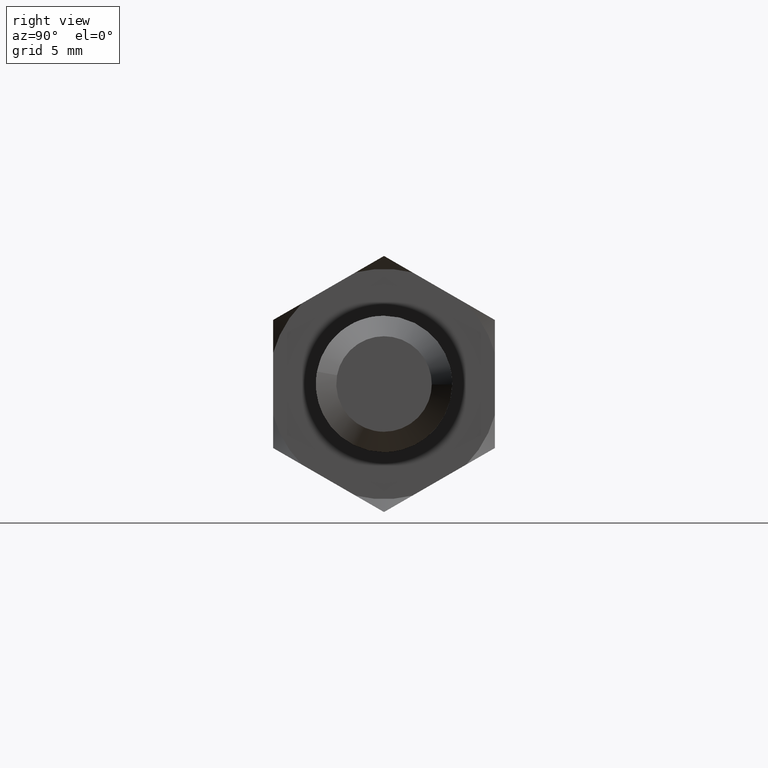
[diagram: clean part render]
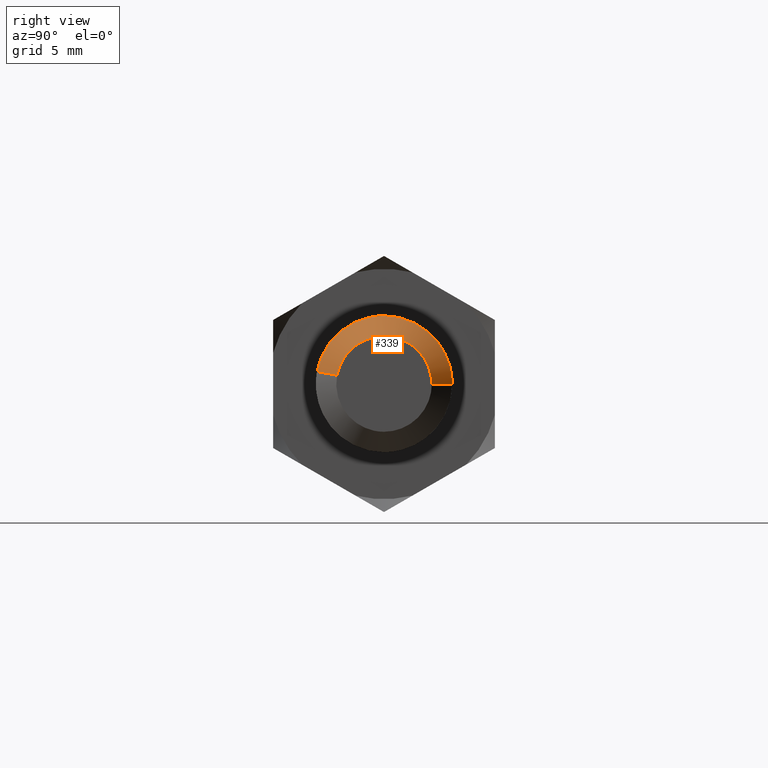
[diagram: same view with one face highlighted and labeled with its STEP entity id]
A machine part, right view. The second image highlights one B-rep face of the part: STEP entity #339.
In plain terms, the highlighted face is a freeform B-spline surface patch.
Its self-contained STEP definition (entity closure, byte-faithful):
#226=CARTESIAN_POINT('',(38.030000000000015,-2.723159001914594,0.507252452228140));
#227=CARTESIAN_POINT('',(38.030000000000001,-2.297913917699555,2.790159068082791));
#228=CARTESIAN_POINT('',(38.030000000000008,0.024172503330496,2.769894526887745));
#229=CARTESIAN_POINT('',(38.030000000000008,2.794067030218240,2.745722023557250));
#230=CARTESIAN_POINT('',(38.030000000000008,2.769894526887745,-0.024172503330496));
#231=CARTESIAN_POINT('',(36.769250000000000,-3.962589583742731,0.738125567443537));
#232=CARTESIAN_POINT('',(36.769249999999985,-3.343796578977463,4.060084355117265));
#233=CARTESIAN_POINT('',(36.769249999999992,0.035174482960071,4.030596521390938));
#234=CARTESIAN_POINT('',(36.769249999999992,4.065771004351008,3.995422038430867));
#235=CARTESIAN_POINT('',(36.769249999999992,4.030596521390938,-0.035174482960071));
#243=(BOUNDED_SURFACE()B_SPLINE_SURFACE(2,1,((#226,#231),(#227,#232),(#228,#233),(#229,#234),(#230,#235)),.UNSPECIFIED.,.F.,.F.,.U.)B_SPLINE_SURFACE_WITH_KNOTS((3,2,3),(2,2),(0.0,5.876961434204485,12.555326700345949),(0.0,1.0),.UNSPECIFIED.)GEOMETRIC_REPRESENTATION_ITEM()RATIONAL_B_SPLINE_SURFACE(((0.938140952186599,0.938140952186599),(0.742253967444162,0.742253967444162),(1.0,1.0),(0.707106781186548,0.707106781186548),(1.0,1.0)))REPRESENTATION_ITEM('')SURFACE());
#244=CARTESIAN_POINT('',(36.799999999984472,-3.932359569543480,0.732494515982311));
#245=VERTEX_POINT('',#244);
#246=CARTESIAN_POINT('',(36.799999999999997,0.0,4.0));
#247=VERTEX_POINT('',#246);
#248=CARTESIAN_POINT('',(36.799999999984465,-3.932359569543480,0.732494515982311));
#249=CARTESIAN_POINT('',(36.799999999999997,-3.323709773880725,4.0));
#250=CARTESIAN_POINT('',(36.799999999999997,0.0,4.0));
#258=(BOUNDED_CURVE()B_SPLINE_CURVE(2,(#248,#249,#250),.UNSPECIFIED.,.F.,.U.)B_SPLINE_CURVE_WITH_KNOTS((3,3),(0.281445263723857,0.500000000000000),.UNSPECIFIED.)CURVE()GEOMETRIC_REPRESENTATION_ITEM()RATIONAL_B_SPLINE_CURVE((0.935586817218081,0.743947199220621,1.0))REPRESENTATION_ITEM(''));
#259=EDGE_CURVE('',#245,#247,#258,.T.);
#260=ORIENTED_EDGE('',*,*,#259,.F.);
#261=CARTESIAN_POINT('',(37.999999999979337,-2.752651698675086,0.512746161269732));
#262=VERTEX_POINT('',#261);
#263=CARTESIAN_POINT('',(37.999999999979337,-2.752651698675086,0.512746161269732));
#264=CARTESIAN_POINT('',(36.799999999984472,-3.932359569543480,0.732494515982311));
#265=QUASI_UNIFORM_CURVE('',1,(#263,#264),.UNSPECIFIED.,.F.,.U.);
#266=EDGE_CURVE('',#262,#245,#265,.T.);
#267=ORIENTED_EDGE('',*,*,#266,.F.);
#268=CARTESIAN_POINT('',(38.0,0.0,2.800000000000000));
#269=VERTEX_POINT('',#268);
#270=CARTESIAN_POINT('',(38.0,0.0,2.800000000000000));
#271=CARTESIAN_POINT('',(38.0,-2.326596841578378,2.799999999999999));
#272=CARTESIAN_POINT('',(37.999999999979345,-2.752651698675086,0.512746161269732));
#280=(BOUNDED_CURVE()B_SPLINE_CURVE(2,(#270,#271,#272),.UNSPECIFIED.,.F.,.U.)B_SPLINE_CURVE_WITH_KNOTS((3,3),(0.500000000000000,0.718554736266490),.UNSPECIFIED.)CURVE()GEOMETRIC_REPRESENTATION_ITEM()RATIONAL_B_SPLINE_CURVE((1.0,0.743947199231931,0.935586817201153))REPRESENTATION_ITEM(''));
#281=EDGE_CURVE('',#269,#262,#280,.T.);
#282=ORIENTED_EDGE('',*,*,#281,.F.);
#283=CARTESIAN_POINT('',(37.999999999977057,2.799893384601154,-0.024434299563725));
#284=VERTEX_POINT('',#283);
#285=CARTESIAN_POINT('',(37.999999999977057,2.799893384601154,-0.024434299563725));
#286=CARTESIAN_POINT('',(38.0,2.799999999999999,-0.012217382466052));
#287=CARTESIAN_POINT('',(38.0,2.800000000000000,0.0));
#288=CARTESIAN_POINT('',(37.999999999999993,2.800000000000000,2.800000000000000));
#289=CARTESIAN_POINT('',(38.0,0.0,2.800000000000000));
#297=(BOUNDED_CURVE()B_SPLINE_CURVE(2,(#285,#286,#287,#288,#289),.UNSPECIFIED.,.F.,.U.)B_SPLINE_CURVE_WITH_KNOTS((3,2,3),(0.248460105643865,0.250000000000000,0.500000000000000),.UNSPECIFIED.)CURVE()GEOMETRIC_REPRESENTATION_ITEM()RATIONAL_B_SPLINE_CURVE((0.996414028051464,0.998195901541596,1.0,0.707106781186547,1.0))REPRESENTATION_ITEM(''));
#298=EDGE_CURVE('',#284,#269,#297,.T.);
#299=ORIENTED_EDGE('',*,*,#298,.F.);
#300=CARTESIAN_POINT('',(36.799999999977892,3.999847692277395,-0.034906142155650));
#301=VERTEX_POINT('',#300);
#302=CARTESIAN_POINT('',(37.999999999977057,2.799893384601154,-0.024434299563725));
#303=CARTESIAN_POINT('',(36.799999999977892,3.999847692277395,-0.034906142155650));
#304=QUASI_UNIFORM_CURVE('',1,(#302,#303),.UNSPECIFIED.,.F.,.U.);
#305=EDGE_CURVE('',#284,#301,#304,.T.);
#306=ORIENTED_EDGE('',*,*,#305,.T.);
#307=CARTESIAN_POINT('',(36.799999999999997,3.992539193685000,0.244194158179768));
#308=VERTEX_POINT('',#307);
#309=CARTESIAN_POINT('',(36.799999999999997,3.992539193685000,0.244194158179768));
#310=CARTESIAN_POINT('',(36.799999999999997,4.000000000000001,0.122211053234808));
#311=CARTESIAN_POINT('',(36.799999999999997,4.0,0.0));
#312=CARTESIAN_POINT('',(36.799999999999997,4.000000000000001,-0.017453403444772));
#313=CARTESIAN_POINT('',(36.799999999977885,3.999847692277395,-0.034906142155650));
#321=(BOUNDED_CURVE()B_SPLINE_CURVE(2,(#309,#310,#311,#312,#313),.UNSPECIFIED.,.F.,.U.)B_SPLINE_CURVE_WITH_KNOTS((3,2,3),(0.739332962238482,0.750000000000000,0.751539894349251),.UNSPECIFIED.)CURVE()GEOMETRIC_REPRESENTATION_ITEM()RATIONAL_B_SPLINE_CURVE((0.976072041665729,0.987502787899297,1.0,0.998195901549660,0.996414028067394))REPRESENTATION_ITEM(''));
#322=EDGE_CURVE('',#308,#301,#321,.T.);
#323=ORIENTED_EDGE('',*,*,#322,.F.);
#324=CARTESIAN_POINT('',(36.799999999999997,0.0,4.0));
#325=CARTESIAN_POINT('',(36.800000000000004,3.762824267546587,4.000000000000000));
#326=CARTESIAN_POINT('',(36.799999999999997,3.992539193685000,0.244194158179768));
#334=(BOUNDED_CURVE()B_SPLINE_CURVE(2,(#324,#325,#326),.UNSPECIFIED.,.F.,.U.)B_SPLINE_CURVE_WITH_KNOTS((3,3),(0.500000000000000,0.739332962238481),.UNSPECIFIED.)CURVE()GEOMETRIC_REPRESENTATION_ITEM()RATIONAL_B_SPLINE_CURVE((1.0,0.719603993287251,0.976072041665728))REPRESENTATION_ITEM(''));
#335=EDGE_CURVE('',#247,#308,#334,.T.);
#336=ORIENTED_EDGE('',*,*,#335,.F.);
#337=EDGE_LOOP('',(#260,#267,#282,#299,#306,#323,#336));
#338=FACE_OUTER_BOUND('',#337,.T.);
#339=ADVANCED_FACE('',(#338),#243,.T.);